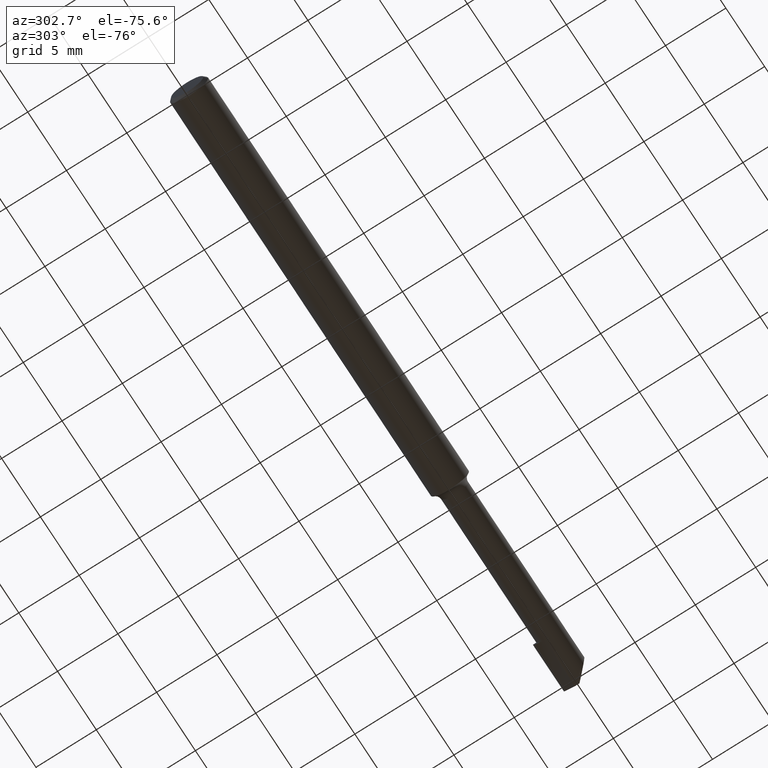
[diagram: clean part render]
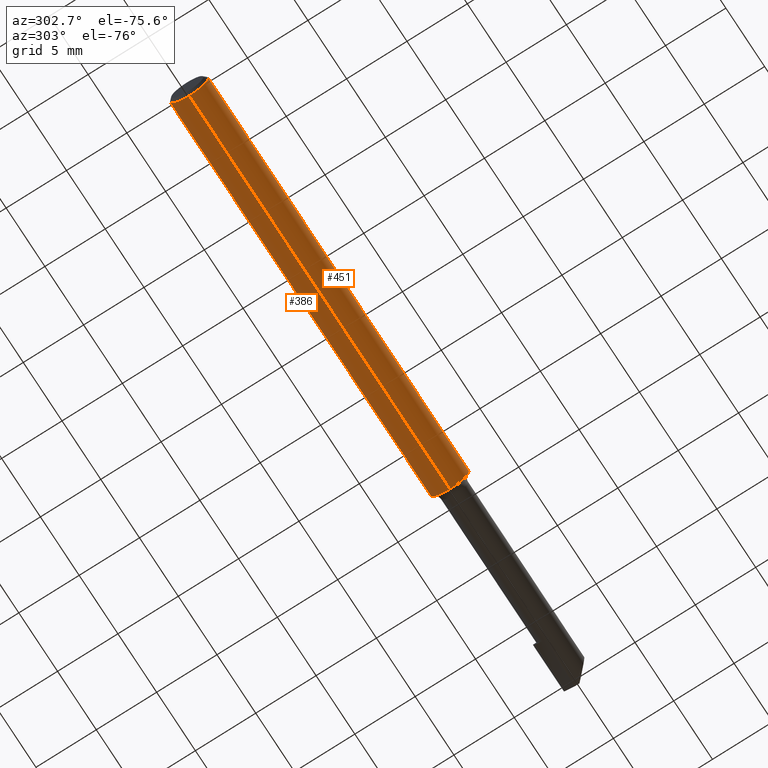
[diagram: same view with one multi-face feature highlighted, each face labeled with its STEP entity id]
A machine part, auxiliary view. The highlighted faces form ONE feature: a constant-radius fillet chain: 2 tangent blend faces with common blend radius 1.5837 mm. The faces share edges in the B-rep.
Their STEP definitions:
[1] entity #386 (Cylinder):
#22 = VECTOR ( 'NONE', #781, 39.37007874015748143 ) ;
#27 = CARTESIAN_POINT ( 'NONE',  ( 0.000000000000000000, 0.000000000000000000, 0.06235000000000000264 ) ) ;
#46 = ORIENTED_EDGE ( 'NONE', *, *, #115, .F. ) ;
#51 = VECTOR ( 'NONE', #298, 39.37007874015748143 ) ;
#61 = VERTEX_POINT ( 'NONE', #713 ) ;
#69 = DIRECTION ( 'NONE',  ( 1.000000000000000000, 0.000000000000000000, 0.000000000000000000 ) ) ;
#70 = ORIENTED_EDGE ( 'NONE', *, *, #553, .T. ) ;
#110 = ORIENTED_EDGE ( 'NONE', *, *, #332, .F. ) ;
#115 = EDGE_CURVE ( 'NONE', #413, #430, #670, .T. ) ;
#129 = LINE ( 'NONE', #591, #22 ) ;
#182 = EDGE_CURVE ( 'NONE', #430, #61, #805, .T. ) ;
#204 = AXIS2_PLACEMENT_3D ( 'NONE', #652, #69, #732 ) ;
#247 = CARTESIAN_POINT ( 'NONE',  ( 1.334999999999999742, 7.635672792683746671E-18, -0.06235000000000000264 ) ) ;
#254 = DIRECTION ( 'NONE',  ( -1.000000000000000000, -0.000000000000000000, -0.000000000000000000 ) ) ;
#263 = AXIS2_PLACEMENT_3D ( 'NONE', #735, #683, #358 ) ;
#277 = CIRCLE ( 'NONE', #263, 0.06235000000000000264 ) ;
#298 = DIRECTION ( 'NONE',  ( -1.000000000000000000, -0.000000000000000000, -0.000000000000000000 ) ) ;
#332 = EDGE_CURVE ( 'NONE', #61, #519, #277, .T. ) ;
#358 = DIRECTION ( 'NONE',  ( 0.000000000000000000, 0.000000000000000000, 1.000000000000000000 ) ) ;
#386 = ADVANCED_FACE ( 'NONE', ( #799 ), #416, .T. ) ;
#413 = VERTEX_POINT ( 'NONE', #247 ) ;
#416 = CYLINDRICAL_SURFACE ( 'NONE', #596, 0.06235000000000000264 ) ;
#430 = VERTEX_POINT ( 'NONE', #819 ) ;
#452 = EDGE_LOOP ( 'NONE', ( #46, #70, #110, #702 ) ) ;
#519 = VERTEX_POINT ( 'NONE', #594 ) ;
#553 = EDGE_CURVE ( 'NONE', #413, #519, #129, .T. ) ;
#575 = DIRECTION ( 'NONE',  ( 0.000000000000000000, 0.000000000000000000, 1.000000000000000000 ) ) ;
#591 = CARTESIAN_POINT ( 'NONE',  ( 0.000000000000000000, 7.635672792683746671E-18, -0.06235000000000000264 ) ) ;
#594 = CARTESIAN_POINT ( 'NONE',  ( 0.01000000000000000021, 7.635672792683746671E-18, -0.06235000000000000264 ) ) ;
#596 = AXIS2_PLACEMENT_3D ( 'NONE', #611, #254, #575 ) ;
#611 = CARTESIAN_POINT ( 'NONE',  ( 0.000000000000000000, 0.000000000000000000, 0.000000000000000000 ) ) ;
#652 = CARTESIAN_POINT ( 'NONE',  ( 1.334999999999999742, 0.000000000000000000, 0.000000000000000000 ) ) ;
#670 = CIRCLE ( 'NONE', #204, 0.06235000000000000264 ) ;
#683 = DIRECTION ( 'NONE',  ( -1.000000000000000000, -0.000000000000000000, -0.000000000000000000 ) ) ;
#702 = ORIENTED_EDGE ( 'NONE', *, *, #182, .F. ) ;
#713 = CARTESIAN_POINT ( 'NONE',  ( 0.01000000000000000021, 0.000000000000000000, 0.06235000000000000264 ) ) ;
#732 = DIRECTION ( 'NONE',  ( 0.000000000000000000, 0.000000000000000000, -1.000000000000000000 ) ) ;
#735 = CARTESIAN_POINT ( 'NONE',  ( 0.01000000000000000021, 0.000000000000000000, 0.000000000000000000 ) ) ;
#781 = DIRECTION ( 'NONE',  ( -1.000000000000000000, -0.000000000000000000, -0.000000000000000000 ) ) ;
#799 = FACE_OUTER_BOUND ( 'NONE', #452, .T. ) ;
#805 = LINE ( 'NONE', #27, #51 ) ;
#819 = CARTESIAN_POINT ( 'NONE',  ( 1.334999999999999742, 0.000000000000000000, 0.06235000000000000264 ) ) ;
[2] entity #451 (Cylinder):
#22 = VECTOR ( 'NONE', #781, 39.37007874015748143 ) ;
#27 = CARTESIAN_POINT ( 'NONE',  ( 0.000000000000000000, 0.000000000000000000, 0.06235000000000000264 ) ) ;
#38 = AXIS2_PLACEMENT_3D ( 'NONE', #211, #707, #393 ) ;
#51 = VECTOR ( 'NONE', #298, 39.37007874015748143 ) ;
#61 = VERTEX_POINT ( 'NONE', #713 ) ;
#113 = DIRECTION ( 'NONE',  ( 0.000000000000000000, 0.000000000000000000, 1.000000000000000000 ) ) ;
#129 = LINE ( 'NONE', #591, #22 ) ;
#133 = CIRCLE ( 'NONE', #38, 0.06235000000000000264 ) ;
#137 = DIRECTION ( 'NONE',  ( 1.000000000000000000, 0.000000000000000000, 0.000000000000000000 ) ) ;
#180 = CYLINDRICAL_SURFACE ( 'NONE', #699, 0.06235000000000000264 ) ;
#182 = EDGE_CURVE ( 'NONE', #430, #61, #805, .T. ) ;
#211 = CARTESIAN_POINT ( 'NONE',  ( 0.01000000000000000021, 0.000000000000000000, 0.000000000000000000 ) ) ;
#247 = CARTESIAN_POINT ( 'NONE',  ( 1.334999999999999742, 7.635672792683746671E-18, -0.06235000000000000264 ) ) ;
#264 = AXIS2_PLACEMENT_3D ( 'NONE', #786, #137, #518 ) ;
#298 = DIRECTION ( 'NONE',  ( -1.000000000000000000, -0.000000000000000000, -0.000000000000000000 ) ) ;
#393 = DIRECTION ( 'NONE',  ( 0.000000000000000000, 0.000000000000000000, 1.000000000000000000 ) ) ;
#413 = VERTEX_POINT ( 'NONE', #247 ) ;
#430 = VERTEX_POINT ( 'NONE', #819 ) ;
#439 = CARTESIAN_POINT ( 'NONE',  ( 0.000000000000000000, 0.000000000000000000, 0.000000000000000000 ) ) ;
#451 = ADVANCED_FACE ( 'NONE', ( #688 ), #180, .T. ) ;
#518 = DIRECTION ( 'NONE',  ( 0.000000000000000000, 0.000000000000000000, -1.000000000000000000 ) ) ;
#519 = VERTEX_POINT ( 'NONE', #594 ) ;
#553 = EDGE_CURVE ( 'NONE', #413, #519, #129, .T. ) ;
#565 = ORIENTED_EDGE ( 'NONE', *, *, #573, .F. ) ;
#573 = EDGE_CURVE ( 'NONE', #430, #413, #686, .T. ) ;
#591 = CARTESIAN_POINT ( 'NONE',  ( 0.000000000000000000, 7.635672792683746671E-18, -0.06235000000000000264 ) ) ;
#594 = CARTESIAN_POINT ( 'NONE',  ( 0.01000000000000000021, 7.635672792683746671E-18, -0.06235000000000000264 ) ) ;
#615 = EDGE_LOOP ( 'NONE', ( #829, #565, #733, #747 ) ) ;
#686 = CIRCLE ( 'NONE', #264, 0.06235000000000000264 ) ;
#688 = FACE_OUTER_BOUND ( 'NONE', #615, .T. ) ;
#692 = DIRECTION ( 'NONE',  ( -1.000000000000000000, -0.000000000000000000, -0.000000000000000000 ) ) ;
#699 = AXIS2_PLACEMENT_3D ( 'NONE', #439, #692, #113 ) ;
#707 = DIRECTION ( 'NONE',  ( -1.000000000000000000, -0.000000000000000000, -0.000000000000000000 ) ) ;
#713 = CARTESIAN_POINT ( 'NONE',  ( 0.01000000000000000021, 0.000000000000000000, 0.06235000000000000264 ) ) ;
#733 = ORIENTED_EDGE ( 'NONE', *, *, #182, .T. ) ;
#747 = ORIENTED_EDGE ( 'NONE', *, *, #753, .F. ) ;
#753 = EDGE_CURVE ( 'NONE', #519, #61, #133, .T. ) ;
#781 = DIRECTION ( 'NONE',  ( -1.000000000000000000, -0.000000000000000000, -0.000000000000000000 ) ) ;
#786 = CARTESIAN_POINT ( 'NONE',  ( 1.334999999999999742, 0.000000000000000000, 0.000000000000000000 ) ) ;
#805 = LINE ( 'NONE', #27, #51 ) ;
#819 = CARTESIAN_POINT ( 'NONE',  ( 1.334999999999999742, 0.000000000000000000, 0.06235000000000000264 ) ) ;
#829 = ORIENTED_EDGE ( 'NONE', *, *, #553, .F. ) ;